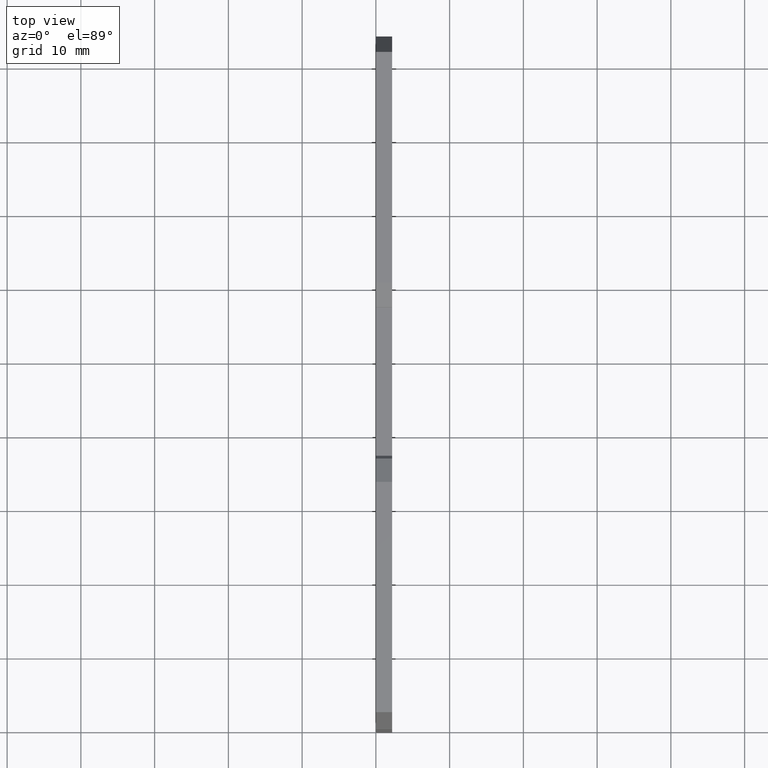
[diagram: clean part render]
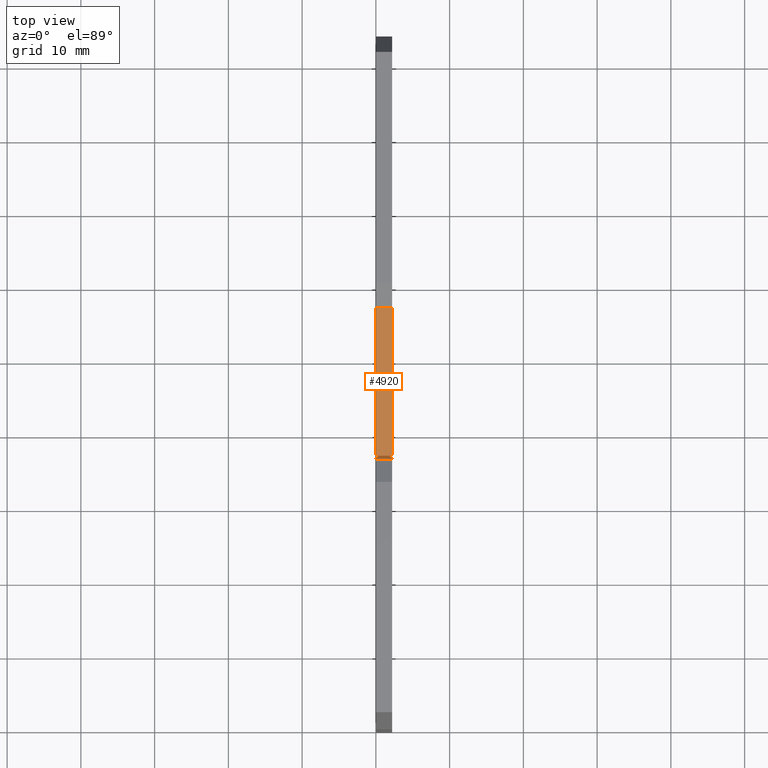
[diagram: same view with one face highlighted and labeled with its STEP entity id]
A machine part, top view. The second image highlights one B-rep face of the part: STEP entity #4920.
In plain terms, the highlighted planar face has unit normal (-0, 0, 1).
Its self-contained STEP definition (entity closure, byte-faithful):
#670=CARTESIAN_POINT('',(28.1611811075906,-9.15000000000794,
2.19999999999844));
#680=VERTEX_POINT('',#670);
#710=CARTESIAN_POINT('',(47.920285,-9.15000000000794,2.19999999999844));
#720=DIRECTION('',(-1.,0.,3.52929730522715E-30));
#730=VECTOR('',#720,1.);
#740=LINE('',#710,#730);
#750=CARTESIAN_POINT('',(48.278415052629,-9.15000000000794,
2.19999999999884));
#760=VERTEX_POINT('',#750);
#770=EDGE_CURVE('',#760,#680,#740,.T.);
#3250=CARTESIAN_POINT('',(28.1611811075905,-9.15000000000794,
-3.68594044175552E-14));
#3260=VERTEX_POINT('',#3250);
#3290=CARTESIAN_POINT('',(28.1611811075905,-9.15000000000794,
-2.8421709430404E-14));
#3300=DIRECTION('',(1.11642715270807E-14,-2.5692745025259E-30,1.));
#3310=VECTOR('',#3300,1.);
#3320=LINE('',#3290,#3310);
#3330=EDGE_CURVE('',#3260,#680,#3320,.T.);
#4490=CARTESIAN_POINT('',(48.2784150526289,-9.15000000000794,
-3.68594044175553E-14));
#4500=VERTEX_POINT('',#4490);
#4600=CARTESIAN_POINT('',(48.2784150526289,-9.15000000000794,
-2.8421709430404E-14));
#4610=DIRECTION('',(-1.24455757664388E-14,3.15544362088405E-30,-1.));
#4620=VECTOR('',#4610,1.);
#4630=LINE('',#4600,#4620);
#4640=EDGE_CURVE('',#760,#4500,#4630,.T.);
#4760=CARTESIAN_POINT('',(37.5981805461789,-9.15000000000794,
2.09999999999844));
#4770=DIRECTION('',(1.88233225079641E-16,1.,0.));
#4780=DIRECTION('',(1.,-1.88233225079641E-16,0.));
#4790=AXIS2_PLACEMENT_3D('',#4760,#4770,#4780);
#4800=PLANE('',#4790);
#4810=ORIENTED_EDGE('',*,*,#3330,.T.);
#4820=CARTESIAN_POINT('',(47.920285,-9.15000000000794,
-3.68594044175553E-14));
#4830=DIRECTION('',(-1.,1.88233225079641E-16,3.5252221702064E-30));
#4840=VECTOR('',#4830,1.);
#4850=LINE('',#4820,#4840);
#4860=EDGE_CURVE('',#4500,#3260,#4850,.T.);
#4870=ORIENTED_EDGE('',*,*,#4860,.T.);
#4880=ORIENTED_EDGE('',*,*,#4640,.T.);
#4890=ORIENTED_EDGE('',*,*,#770,.F.);
#4900=EDGE_LOOP('',(#4890,#4880,#4870,#4810));
#4910=FACE_OUTER_BOUND('',#4900,.T.);
#4920=ADVANCED_FACE('',(#4910),#4800,.T.);